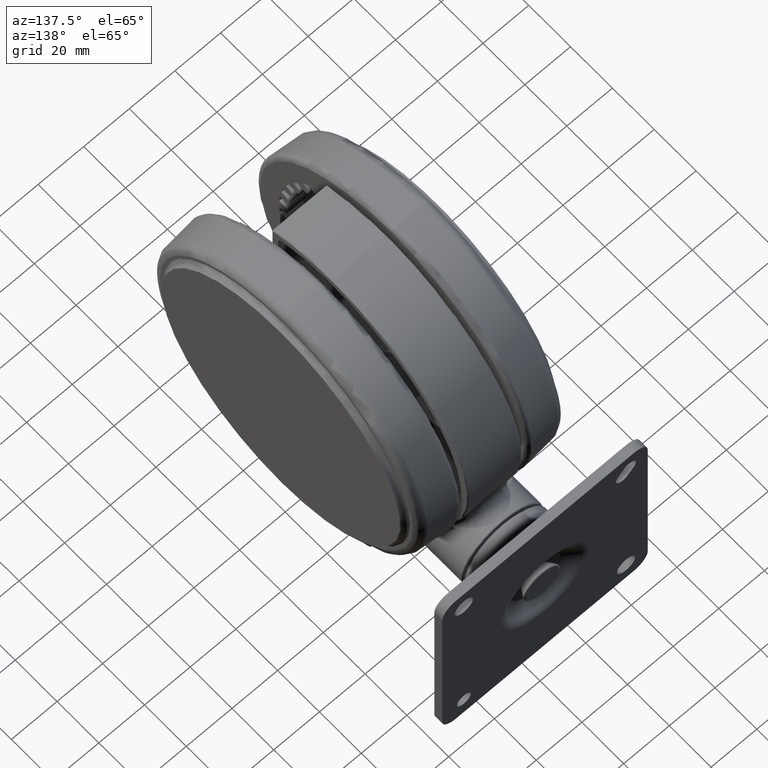
[diagram: clean part render]
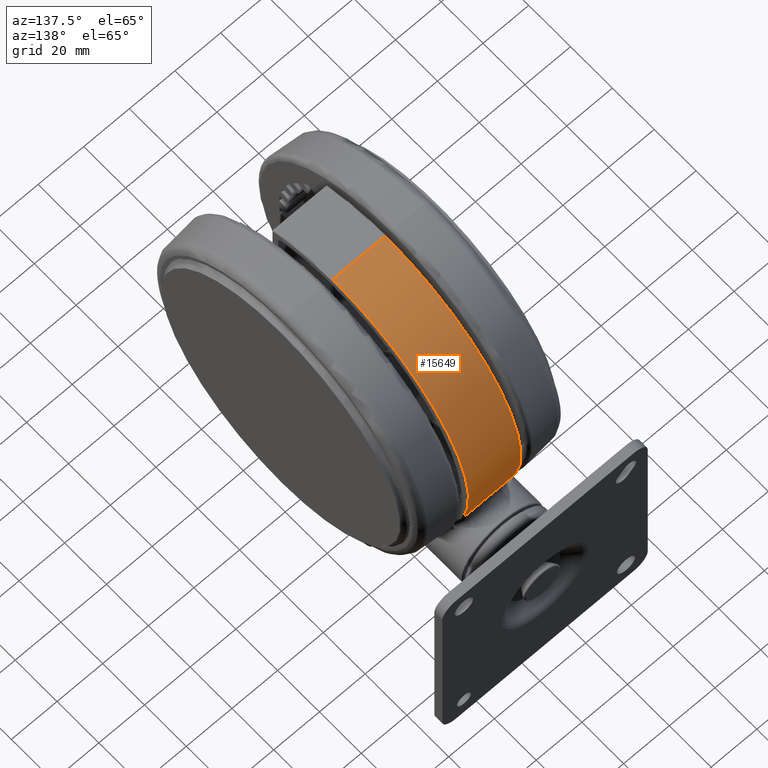
[diagram: same view with one face highlighted and labeled with its STEP entity id]
A machine part, auxiliary view. The second image highlights one B-rep face of the part: STEP entity #15649.
In plain terms, the highlighted cylindrical surface (partial cylindrical patch) has radius 65 mm, axis along (-1, 0, 0).
Its self-contained STEP definition (entity closure, byte-faithful):
#2185 = CARTESIAN_POINT ( 'NONE',  ( 28.41979208592795600, 58.45799600821599300, -22.63798909152319500 ) ) ;
#2419 = CARTESIAN_POINT ( 'NONE',  ( 28.25473794548326400, 58.53800069833340600, -22.68826808428495000 ) ) ;
#2665 = CARTESIAN_POINT ( 'NONE',  ( 24.05646697098871200, 60.38503007150112700, -25.02255636260321800 ) ) ;
#2923 = CARTESIAN_POINT ( 'NONE',  ( 20.56920248095228500, 61.65995548226168700, -30.09609914001082500 ) ) ;
#3177 = CARTESIAN_POINT ( 'NONE',  ( 20.35180260849660900, 61.73179434587805000, -37.37453438213965000 ) ) ;
#3430 = CARTESIAN_POINT ( 'NONE',  ( 23.96206899589131800, 60.42214584076379000, -43.07854949590336700 ) ) ;
#3448 = CARTESIAN_POINT ( 'NONE',  ( 28.55268061621694300, 58.39300472777201600, -22.59998678528551300 ) ) ;
#3467 = ORIENTED_EDGE ( 'NONE', *, *, #23709, .T. ) ;
#3684 = CARTESIAN_POINT ( 'NONE',  ( 27.84747986645113100, 58.73264799791024200, -45.36349939107381600 ) ) ;
#4390 = CARTESIAN_POINT ( 'NONE',  ( 0.0000000000000000000, 4.857225732735059900E-014, -22.10000000000001200 ) ) ;
#5227 = VERTEX_POINT ( 'NONE', #20339 ) ;
#7470 = VERTEX_POINT ( 'NONE', #57035 ) ;
#8219 = CARTESIAN_POINT ( 'NONE',  ( 28.02564669412762300, 58.64779155605072000, -22.76371515054529800 ) ) ;
#8466 = CARTESIAN_POINT ( 'NONE',  ( 22.90324506474311400, 60.83275427788572600, -26.13959871664294700 ) ) ;
#8696 = CARTESIAN_POINT ( 'NONE',  ( 20.19704768694565200, 61.78258270675577500, -31.40211027221487300 ) ) ;
#8953 = CARTESIAN_POINT ( 'NONE',  ( 20.83125172221710000, 61.57175439392999300, -38.72578671632168600 ) ) ;
#9209 = CARTESIAN_POINT ( 'NONE',  ( 24.31886839440781100, 60.27942671725090000, -43.37910290249598000 ) ) ;
#9460 = CARTESIAN_POINT ( 'NONE',  ( 28.05201706713676700, 58.63522482179303100, -45.43470148881115700 ) ) ;
#13551 = AXIS2_PLACEMENT_3D ( 'NONE', #29010, #69315, #34763 ) ;
#14022 = CARTESIAN_POINT ( 'NONE',  ( 27.97786138410045400, 58.67060319216332700, -22.77986088566464700 ) ) ;
#14253 = CARTESIAN_POINT ( 'NONE',  ( 22.30442736374665100, 61.05344574872526000, -26.89637461909180500 ) ) ;
#14498 = CARTESIAN_POINT ( 'NONE',  ( 19.94648445692225300, 61.86398869292533200, -32.75484630788493900 ) ) ;
#14759 = CARTESIAN_POINT ( 'NONE',  ( 21.26177220784380100, 61.42447748542279800, -39.64227792798576600 ) ) ;
#14997 = CARTESIAN_POINT ( 'NONE',  ( 25.06523157264839300, 59.97345130455801200, -43.94026350354617700 ) ) ;
#15253 = CARTESIAN_POINT ( 'NONE',  ( 28.44764654922340700, 58.44444755493177700, -45.56163820931812600 ) ) ;
#15649 = ADVANCED_FACE ( 'NONE', ( #22353 ), #24117, .T. ) ;
#16042 = EDGE_LOOP ( 'NONE', ( #26534, #3467, #16414, #71854 ) ) ;
#16414 = ORIENTED_EDGE ( 'NONE', *, *, #50711, .T. ) ;
#17052 = B_SPLINE_CURVE_WITH_KNOTS ( 'NONE', 3,
 ( #65555, #2185, #2419, #42633, #8219, #48454, #14022, #54274, #19776, #60062, #25514, #65811, #31298, #71641, #37085, #2665, #42876, #8466, #48691, #14253, #54523, #20044, #60313, #25755, #66062, #31543, #71875, #37329, #2923, #43115, #8696, #48945, #14498, #54767, #20289, #60559, #26009, #66318, #31785, #72119, #37558, #3177, #43365, #8953, #49193, #14759, #55011, #20524, #60810, #26256, #66561, #32028, #72376, #37812, #3430, #43608, #9209, #49447, #14997, #55266, #20776, #61058, #26497, #66817, #32272, #72633, #38071, #3684, #43860, #9460, #49704, #15253, #55526 ),
 .UNSPECIFIED., .F., .F.,
 ( 4, 1, 1, 2, 2, 1, 2, 2, 2, 2, 2, 2, 1, 2, 2, 2, 1, 2, 2, 2, 2, 2, 2, 1, 1, 2, 2, 2, 2, 2, 2, 2, 1, 2, 2, 2, 1, 1, 2, 2, 1, 4 ),
 ( 0.1067419510893012100, 0.1190486621800590000, 0.1221253399527482400, 0.1236636788390927000, 0.1252020177254371500, 0.1313553732708147300, 0.1559687954523258600, 0.2051956398153481400, 0.2298090619968594400, 0.2544224841783707100, 0.3036493285413931500, 0.3159560396321489700, 0.3282627507229047800, 0.3528761729044163600, 0.3651828839951722900, 0.3774895950859282800, 0.4021030172674402400, 0.4267164394489521000, 0.4513298616304639600, 0.5005567059934871200, 0.5497835503565101600, 0.5620902614472663700, 0.5682436169926442500, 0.5743969725380223500, 0.5990103947195338800, 0.6236238169010454000, 0.6482372390825569300, 0.6728506612640685600, 0.6851573723548242100, 0.6974640834455798600, 0.7466909278086021300, 0.7589976388993577800, 0.7713043499901135500, 0.7959177721716249600, 0.8082244832623806100, 0.8143778388077583800, 0.8205311943531362600, 0.8451446165346482300, 0.8697580387161602000, 0.8759113942615383000, 0.8820647498069162900, 0.8943714608976720500 ),
 .UNSPECIFIED. ) ;
#17953 = CARTESIAN_POINT ( 'NONE',  ( 0.0000000000000000000, 4.857225732735059900E-014, -22.60000000000001200 ) ) ;
#19776 = CARTESIAN_POINT ( 'NONE',  ( 27.52441140500802800, 58.88583257890336900, -22.93883237919850200 ) ) ;
#20044 = CARTESIAN_POINT ( 'NONE',  ( 21.82644794810713100, 61.22641157199390000, -27.56596694341926900 ) ) ;
#20289 = CARTESIAN_POINT ( 'NONE',  ( 19.89000070504157900, 61.88204806768193600, -34.78746132979097900 ) ) ;
#20339 = CARTESIAN_POINT ( 'NONE',  ( 28.58100464385631400, 58.37914537070243200, -45.60001317750133200 ) ) ;
#20524 = CARTESIAN_POINT ( 'NONE',  ( 21.75857127528894400, 61.25032949948825900, -40.50638821005869500 ) ) ;
#20776 = CARTESIAN_POINT ( 'NONE',  ( 25.59028387625793500, 59.75080582209338300, -44.27811818792844200 ) ) ;
#22353 = FACE_OUTER_BOUND ( 'NONE', #16042, .T. ) ;
#22499 = EDGE_CURVE ( 'NONE', #7470, #43686, #55779, .T. ) ;
#23709 = EDGE_CURVE ( 'NONE', #7470, #47777, #56511, .T. ) ;
#23719 = DIRECTION ( 'NONE',  ( 0.9999426917550610100, -0.01070575572499100000, 0.0000000000000000000 ) ) ;
#24117 = CYLINDRICAL_SURFACE ( 'NONE', #73285, 65.00000000000000000 ) ;
#25514 = CARTESIAN_POINT ( 'NONE',  ( 26.33591290003188600, 59.42888904304305700, -23.46208229479113800 ) ) ;
#25755 = CARTESIAN_POINT ( 'NONE',  ( 21.32829577117960800, 61.40122966508065600, -28.41821584794691800 ) ) ;
#26009 = CARTESIAN_POINT ( 'NONE',  ( 20.09942702844702100, 61.81435122240116400, -36.30163135561684100 ) ) ;
#26256 = CARTESIAN_POINT ( 'NONE',  ( 22.12971976245927100, 61.11698861417271200, -41.05276035805465500 ) ) ;
#26497 = CARTESIAN_POINT ( 'NONE',  ( 25.85977026944347300, 59.63453321288988500, -44.43807676528076900 ) ) ;
#26534 = ORIENTED_EDGE ( 'NONE', *, *, #22499, .F. ) ;
#27595 = DIRECTION ( 'NONE',  ( 0.0000000000000000000, 0.0000000000000000000, -1.000000000000000000 ) ) ;
#29010 = CARTESIAN_POINT ( 'NONE',  ( 0.0000000000000000000, 4.857225732735059900E-014, -45.60000000000001600 ) ) ;
#31298 = CARTESIAN_POINT ( 'NONE',  ( 25.03310550497556300, 59.98683925776205700, -24.26384737468194400 ) ) ;
#31543 = CARTESIAN_POINT ( 'NONE',  ( 21.10228067996087700, 61.47926429719152700, -28.85910942606974000 ) ) ;
#31785 = CARTESIAN_POINT ( 'NONE',  ( 20.18877048257118600, 61.78522420014830600, -36.72101404126440400 ) ) ;
#32028 = CARTESIAN_POINT ( 'NONE',  ( 22.42236135061162000, 61.01023846236232400, -41.44564791616738800 ) ) ;
#32272 = CARTESIAN_POINT ( 'NONE',  ( 26.32687738378807300, 59.43069475894004200, -44.70101322629943800 ) ) ;
#34763 = DIRECTION ( 'NONE',  ( 0.9999426917550610100, -0.01070575572499100000, 0.0000000000000000000 ) ) ;
#37085 = CARTESIAN_POINT ( 'NONE',  ( 24.29338204275777700, 60.29014341858069100, -24.82376520895498100 ) ) ;
#37329 = CARTESIAN_POINT ( 'NONE',  ( 20.82188002743955800, 61.57492224689189400, -29.46952685547005400 ) ) ;
#37558 = CARTESIAN_POINT ( 'NONE',  ( 20.24764623992006900, 61.76595554260340700, -36.96602451007599700 ) ) ;
#37812 = CARTESIAN_POINT ( 'NONE',  ( 23.36532658605735300, 60.65743854292640000, -42.54105573440213600 ) ) ;
#38071 = CARTESIAN_POINT ( 'NONE',  ( 27.49512300738598800, 58.89919713332199800, -45.23463577218236500 ) ) ;
#38530 = DIRECTION ( 'NONE',  ( 0.0000000000000000000, 0.0000000000000000000, -1.000000000000000000 ) ) ;
#42633 = CARTESIAN_POINT ( 'NONE',  ( 28.07464315389361800, 58.62436958270728800, -22.74730794547273400 ) ) ;
#42876 = CARTESIAN_POINT ( 'NONE',  ( 23.34230209213289300, 60.66629024828409200, -25.67161477966177000 ) ) ;
#43115 = CARTESIAN_POINT ( 'NONE',  ( 20.36975251391176700, 61.72585717272673400, -30.74381804980060600 ) ) ;
#43365 = CARTESIAN_POINT ( 'NONE',  ( 20.57721198405406300, 61.65728646899324200, -38.09847191435390800 ) ) ;
#43608 = CARTESIAN_POINT ( 'NONE',  ( 24.07938352968479400, 60.37549117129643200, -43.17996524115104500 ) ) ;
#43686 = VERTEX_POINT ( 'NONE', #63722 ) ;
#43860 = CARTESIAN_POINT ( 'NONE',  ( 27.92120573786976200, 58.69762790420662000, -45.38961938130317700 ) ) ;
#47777 = VERTEX_POINT ( 'NONE', #3448 ) ;
#48454 = CARTESIAN_POINT ( 'NONE',  ( 27.99300917302834100, 58.66337668822681200, -22.77472115942670400 ) ) ;
#48691 = CARTESIAN_POINT ( 'NONE',  ( 22.40208994589841800, 61.01768416022084600, -26.76867654488042800 ) ) ;
#48945 = CARTESIAN_POINT ( 'NONE',  ( 20.12318933812907000, 61.80664273085029900, -31.74024620383020300 ) ) ;
#49193 = CARTESIAN_POINT ( 'NONE',  ( 21.11195541496376300, 61.47607116608376300, -39.34500890495593900 ) ) ;
#49447 = CARTESIAN_POINT ( 'NONE',  ( 24.68370733900895100, 60.13183707239328900, -43.67055891791642400 ) ) ;
#49704 = CARTESIAN_POINT ( 'NONE',  ( 28.24887611707690000, 58.54091109068907200, -45.50066272966975600 ) ) ;
#50711 = EDGE_CURVE ( 'NONE', #47777, #5227, #17052, .T. ) ;
#50788 = CARTESIAN_POINT ( 'NONE',  ( -64.99627496407896400, 0.6958741221244636500, -22.10000000000001200 ) ) ;
#50937 = EDGE_CURVE ( 'NONE', #5227, #43686, #53780, .T. ) ;
#52149 = VECTOR ( 'NONE', #27595, 1000.000000000000000 ) ;
#53780 = CIRCLE ( 'NONE', #13551, 65.00000000000000000 ) ;
#54274 = CARTESIAN_POINT ( 'NONE',  ( 27.88684829871943200, 58.71396935080858300, -22.81098914732463700 ) ) ;
#54523 = CARTESIAN_POINT ( 'NONE',  ( 22.10983243598512600, 61.12418529084742900, -27.16199617994394100 ) ) ;
#54767 = CARTESIAN_POINT ( 'NONE',  ( 19.88800601485409600, 61.88268916143335500, -33.43434025362709100 ) ) ;
#55011 = CARTESIAN_POINT ( 'NONE',  ( 21.58549354018447300, 61.31146597824998400, -40.22387728627676800 ) ) ;
#55266 = CARTESIAN_POINT ( 'NONE',  ( 25.45765818515715000, 59.80742272929320100, -44.19546713598209900 ) ) ;
#55526 = CARTESIAN_POINT ( 'NONE',  ( 28.58100464385631400, 58.37914537070243200, -45.60001317750133200 ) ) ;
#55779 = LINE ( 'NONE', #50788, #52149 ) ;
#56226 = DIRECTION ( 'NONE',  ( -0.9999426917550610100, 0.01070575572499100000, 0.0000000000000000000 ) ) ;
#56511 = CIRCLE ( 'NONE', #74333, 65.00000000000000000 ) ;
#57035 = CARTESIAN_POINT ( 'NONE',  ( -64.99627496407896400, 0.6958741221244636500, -22.60000000000001200 ) ) ;
#58258 = DIRECTION ( 'NONE',  ( -0.0000000000000000000, -0.0000000000000000000, -1.000000000000000000 ) ) ;
#60062 = CARTESIAN_POINT ( 'NONE',  ( 27.17011809295580300, 59.04979232060804200, -23.08332653724181000 ) ) ;
#60313 = CARTESIAN_POINT ( 'NONE',  ( 21.56873247547055100, 61.31735968670834300, -27.98655297348598500 ) ) ;
#60559 = CARTESIAN_POINT ( 'NONE',  ( 19.95025290107819800, 61.86277678761792500, -35.46171010077047500 ) ) ;
#60810 = CARTESIAN_POINT ( 'NONE',  ( 22.03485007973816700, 61.15124654410485800, -40.91772146268633000 ) ) ;
#61058 = CARTESIAN_POINT ( 'NONE',  ( 25.79191771939818200, 59.66391150997430500, -44.39846952754953700 ) ) ;
#63722 = CARTESIAN_POINT ( 'NONE',  ( -64.99627496407896400, 0.6958741221244636500, -45.60000000000001600 ) ) ;
#65555 = CARTESIAN_POINT ( 'NONE',  ( 28.55268061621694300, 58.39300472777201600, -22.59998678528551300 ) ) ;
#65811 = CARTESIAN_POINT ( 'NONE',  ( 25.80125290948980400, 59.66242007947546700, -23.75721250415117700 ) ) ;
#66062 = CARTESIAN_POINT ( 'NONE',  ( 21.25102969519931400, 61.42800603400320400, -28.56394961349960600 ) ) ;
#66318 = CARTESIAN_POINT ( 'NONE',  ( 20.13295317135223400, 61.80344431212746100, -36.46947112114220600 ) ) ;
#66561 = CARTESIAN_POINT ( 'NONE',  ( 22.32498182095966000, 61.04593336761849500, -41.31869377110953700 ) ) ;
#66817 = CARTESIAN_POINT ( 'NONE',  ( 25.99290919377655500, 59.57662244162340000, -44.51417581783356800 ) ) ;
#69315 = DIRECTION ( 'NONE',  ( 0.0000000000000000000, 0.0000000000000000000, 1.000000000000000000 ) ) ;
#71641 = CARTESIAN_POINT ( 'NONE',  ( 24.78269377789200300, 60.09066394723598800, -24.44338225760732200 ) ) ;
#71854 = ORIENTED_EDGE ( 'NONE', *, *, #50937, .T. ) ;
#71875 = CARTESIAN_POINT ( 'NONE',  ( 21.03121990875098700, 61.50360333790800400, -29.00752762653284800 ) ) ;
#72119 = CARTESIAN_POINT ( 'NONE',  ( 20.20767075340240700, 61.77904567950118800, -36.80211477291718600 ) ) ;
#72376 = CARTESIAN_POINT ( 'NONE',  ( 22.92502216878212100, 60.82456026070536100, -42.07451242590614300 ) ) ;
#72633 = CARTESIAN_POINT ( 'NONE',  ( 26.93803976831306100, 59.15755304127264200, -45.00662855529274300 ) ) ;
#73285 = AXIS2_PLACEMENT_3D ( 'NONE', #4390, #38530, #56226 ) ;
#74333 = AXIS2_PLACEMENT_3D ( 'NONE', #17953, #58258, #23719 ) ;